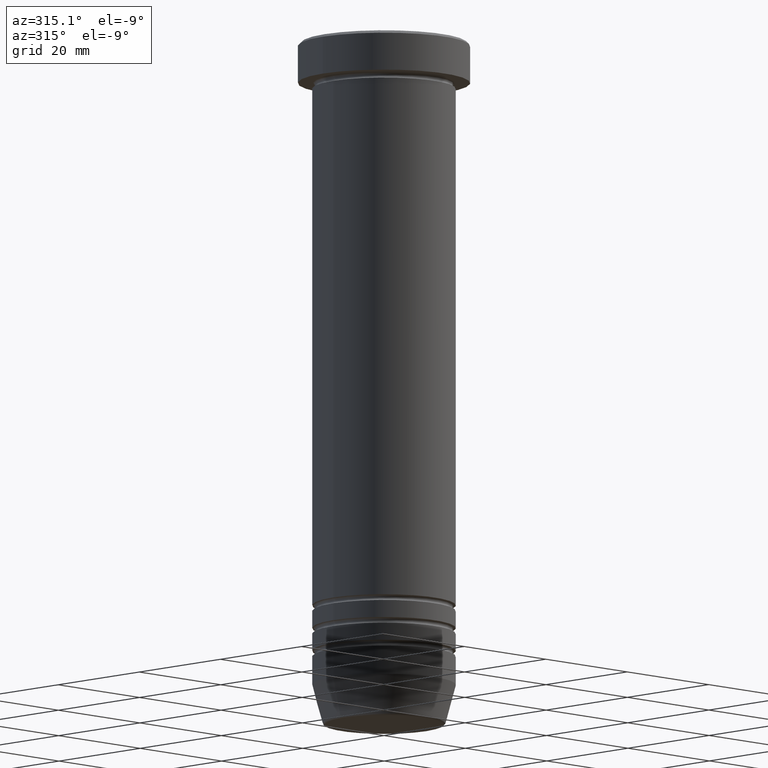
[diagram: clean part render]
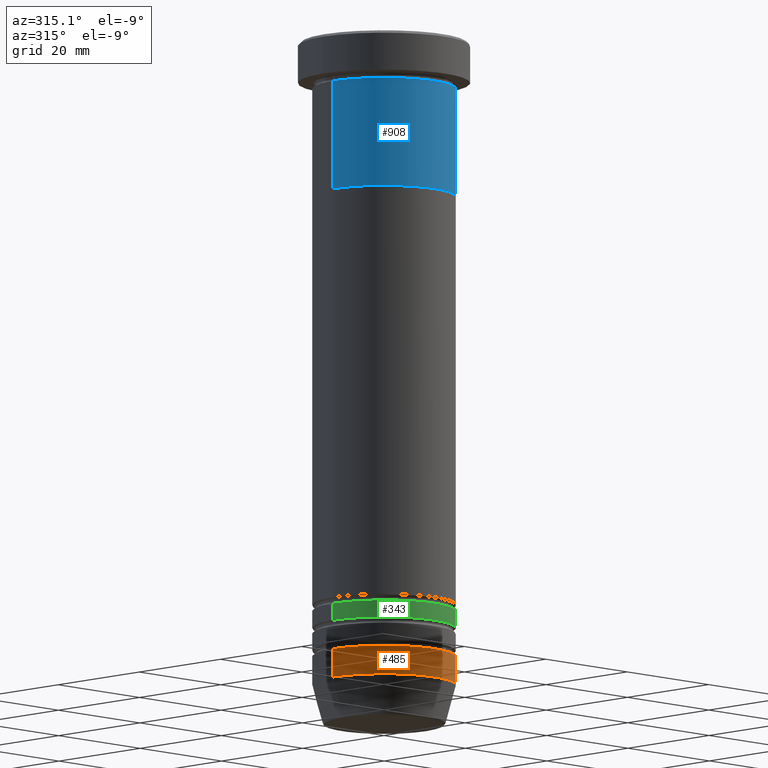
[diagram: same view with three faces highlighted in distinct colors, each labeled with its STEP entity id]
A machine part, auxiliary view with three faces highlighted in distinct colors.
Their STEP definitions:

[orange] entity #485 — the highlighted cylindrical surface (partial cylindrical patch) has radius 12.5 mm, axis along (-0, -0, 1).
#8 = FACE_OUTER_BOUND ( 'NONE', #878, .T. ) ;
#23 = DIRECTION ( 'NONE',  ( -0.000000000000000000, -0.000000000000000000, 1.000000000000000000 ) ) ;
#48 = EDGE_CURVE ( 'NONE', #991, #719, #682, .T. ) ;
#55 = ORIENTED_EDGE ( 'NONE', *, *, #797, .F. ) ;
#59 = ORIENTED_EDGE ( 'NONE', *, *, #48, .T. ) ;
#93 = CARTESIAN_POINT ( 'NONE',  ( -12.50000000000000000, 1.530808498934191521E-15, -107.9999999999999858 ) ) ;
#101 = CIRCLE ( 'NONE', #602, 12.50000000000000000 ) ;
#102 = AXIS2_PLACEMENT_3D ( 'NONE', #296, #452, #397 ) ;
#112 = ORIENTED_EDGE ( 'NONE', *, *, #1014, .T. ) ;
#138 = AXIS2_PLACEMENT_3D ( 'NONE', #598, #988, #421 ) ;
#140 = VECTOR ( 'NONE', #23, 1000.000000000000000 ) ;
#181 = DIRECTION ( 'NONE',  ( -0.000000000000000000, -0.000000000000000000, 1.000000000000000000 ) ) ;
#194 = DIRECTION ( 'NONE',  ( -0.000000000000000000, -0.000000000000000000, 1.000000000000000000 ) ) ;
#197 = CARTESIAN_POINT ( 'NONE',  ( -12.50000000000000000, 1.530808498934191521E-15, -112.9999999999999858 ) ) ;
#296 = CARTESIAN_POINT ( 'NONE',  ( 0.000000000000000000, 0.000000000000000000, -112.9999999999999858 ) ) ;
#397 = DIRECTION ( 'NONE',  ( 1.000000000000000000, 0.000000000000000000, 0.000000000000000000 ) ) ;
#421 = DIRECTION ( 'NONE',  ( 1.000000000000000000, 0.000000000000000000, 0.000000000000000000 ) ) ;
#438 = LINE ( 'NONE', #905, #140 ) ;
#452 = DIRECTION ( 'NONE',  ( -0.000000000000000000, -0.000000000000000000, 1.000000000000000000 ) ) ;
#485 = ADVANCED_FACE ( 'NONE', ( #8 ), #836, .T. ) ;
#534 = CARTESIAN_POINT ( 'NONE',  ( 12.50000000000000000, 0.000000000000000000, -112.9999999999999858 ) ) ;
#598 = CARTESIAN_POINT ( 'NONE',  ( 0.000000000000000000, 0.000000000000000000, 0.000000000000000000 ) ) ;
#602 = AXIS2_PLACEMENT_3D ( 'NONE', #742, #194, #840 ) ;
#635 = VERTEX_POINT ( 'NONE', #197 ) ;
#673 = CARTESIAN_POINT ( 'NONE',  ( 12.50000000000000000, 0.000000000000000000, 0.000000000000000000 ) ) ;
#682 = LINE ( 'NONE', #673, #1002 ) ;
#719 = VERTEX_POINT ( 'NONE', #864 ) ;
#742 = CARTESIAN_POINT ( 'NONE',  ( 0.000000000000000000, 0.000000000000000000, -107.9999999999999858 ) ) ;
#790 = VERTEX_POINT ( 'NONE', #93 ) ;
#797 = EDGE_CURVE ( 'NONE', #635, #790, #438, .T. ) ;
#799 = ORIENTED_EDGE ( 'NONE', *, *, #856, .F. ) ;
#836 = CYLINDRICAL_SURFACE ( 'NONE', #138, 12.50000000000000000 ) ;
#840 = DIRECTION ( 'NONE',  ( 1.000000000000000000, 0.000000000000000000, 0.000000000000000000 ) ) ;
#856 = EDGE_CURVE ( 'NONE', #790, #719, #101, .T. ) ;
#864 = CARTESIAN_POINT ( 'NONE',  ( 12.50000000000000000, 0.000000000000000000, -107.9999999999999858 ) ) ;
#878 = EDGE_LOOP ( 'NONE', ( #55, #112, #59, #799 ) ) ;
#905 = CARTESIAN_POINT ( 'NONE',  ( -12.50000000000000000, 1.530808498934191521E-15, 0.000000000000000000 ) ) ;
#988 = DIRECTION ( 'NONE',  ( -0.000000000000000000, -0.000000000000000000, 1.000000000000000000 ) ) ;
#991 = VERTEX_POINT ( 'NONE', #534 ) ;
#1002 = VECTOR ( 'NONE', #181, 1000.000000000000000 ) ;
#1014 = EDGE_CURVE ( 'NONE', #635, #991, #1024, .T. ) ;
#1024 = CIRCLE ( 'NONE', #102, 12.50000000000000000 ) ;

[blue] entity #908 — the highlighted cylindrical surface (partial cylindrical patch) has radius 12.5 mm, axis along (-0, -0, 1).
#12 = VECTOR ( 'NONE', #348, 1000.000000000000000 ) ;
#21 = LINE ( 'NONE', #676, #12 ) ;
#41 = CYLINDRICAL_SURFACE ( 'NONE', #820, 12.50000000000000000 ) ;
#51 = DIRECTION ( 'NONE',  ( -0.000000000000000000, -0.000000000000000000, 1.000000000000000000 ) ) ;
#57 = CARTESIAN_POINT ( 'NONE',  ( -12.50000000000000000, 1.530808498934191521E-15, 0.000000000000000000 ) ) ;
#82 = ORIENTED_EDGE ( 'NONE', *, *, #577, .T. ) ;
#120 = AXIS2_PLACEMENT_3D ( 'NONE', #419, #995, #604 ) ;
#212 = DIRECTION ( 'NONE',  ( -0.000000000000000000, -0.000000000000000000, 1.000000000000000000 ) ) ;
#216 = CARTESIAN_POINT ( 'NONE',  ( 0.000000000000000000, 0.000000000000000000, 0.000000000000000000 ) ) ;
#237 = EDGE_CURVE ( 'NONE', #846, #979, #369, .T. ) ;
#348 = DIRECTION ( 'NONE',  ( -0.000000000000000000, -0.000000000000000000, 1.000000000000000000 ) ) ;
#369 = LINE ( 'NONE', #57, #966 ) ;
#391 = CIRCLE ( 'NONE', #771, 12.50000000000000000 ) ;
#405 = CIRCLE ( 'NONE', #120, 12.50000000000000000 ) ;
#419 = CARTESIAN_POINT ( 'NONE',  ( 0.000000000000000000, 0.000000000000000000, -27.00000000000000000 ) ) ;
#426 = DIRECTION ( 'NONE',  ( 1.000000000000000000, 0.000000000000000000, 0.000000000000000000 ) ) ;
#470 = FACE_OUTER_BOUND ( 'NONE', #572, .T. ) ;
#505 = DIRECTION ( 'NONE',  ( -0.000000000000000000, -0.000000000000000000, 1.000000000000000000 ) ) ;
#540 = ORIENTED_EDGE ( 'NONE', *, *, #814, .F. ) ;
#543 = DIRECTION ( 'NONE',  ( 1.000000000000000000, 0.000000000000000000, 0.000000000000000000 ) ) ;
#553 = ORIENTED_EDGE ( 'NONE', *, *, #237, .F. ) ;
#572 = EDGE_LOOP ( 'NONE', ( #553, #828, #82, #540 ) ) ;
#577 = EDGE_CURVE ( 'NONE', #833, #627, #21, .T. ) ;
#604 = DIRECTION ( 'NONE',  ( 1.000000000000000000, 0.000000000000000000, 0.000000000000000000 ) ) ;
#627 = VERTEX_POINT ( 'NONE', #824 ) ;
#676 = CARTESIAN_POINT ( 'NONE',  ( 12.50000000000000000, 0.000000000000000000, 0.000000000000000000 ) ) ;
#678 = CARTESIAN_POINT ( 'NONE',  ( 0.000000000000000000, 0.000000000000000000, -8.000000000000000000 ) ) ;
#692 = CARTESIAN_POINT ( 'NONE',  ( -12.50000000000000000, 1.530808498934191521E-15, -8.000000000000000000 ) ) ;
#727 = EDGE_CURVE ( 'NONE', #846, #833, #405, .T. ) ;
#771 = AXIS2_PLACEMENT_3D ( 'NONE', #678, #505, #426 ) ;
#814 = EDGE_CURVE ( 'NONE', #979, #627, #391, .T. ) ;
#820 = AXIS2_PLACEMENT_3D ( 'NONE', #216, #212, #543 ) ;
#824 = CARTESIAN_POINT ( 'NONE',  ( 12.50000000000000000, 0.000000000000000000, -8.000000000000000000 ) ) ;
#828 = ORIENTED_EDGE ( 'NONE', *, *, #727, .T. ) ;
#833 = VERTEX_POINT ( 'NONE', #990 ) ;
#846 = VERTEX_POINT ( 'NONE', #926 ) ;
#908 = ADVANCED_FACE ( 'NONE', ( #470 ), #41, .T. ) ;
#926 = CARTESIAN_POINT ( 'NONE',  ( -12.50000000000000000, 1.530808498934191521E-15, -27.00000000000000000 ) ) ;
#966 = VECTOR ( 'NONE', #51, 1000.000000000000000 ) ;
#979 = VERTEX_POINT ( 'NONE', #692 ) ;
#990 = CARTESIAN_POINT ( 'NONE',  ( 12.50000000000000000, 0.000000000000000000, -27.00000000000000000 ) ) ;
#995 = DIRECTION ( 'NONE',  ( -0.000000000000000000, -0.000000000000000000, 1.000000000000000000 ) ) ;

[green] entity #343 — the highlighted cylindrical surface (partial cylindrical patch) has radius 12.5 mm, axis along (-0, -0, 1).
#5 = EDGE_CURVE ( 'NONE', #356, #159, #316, .T. ) ;
#11 = VECTOR ( 'NONE', #612, 1000.000000000000000 ) ;
#15 = EDGE_CURVE ( 'NONE', #453, #213, #730, .T. ) ;
#19 = ORIENTED_EDGE ( 'NONE', *, *, #311, .F. ) ;
#34 = CARTESIAN_POINT ( 'NONE',  ( -12.50000000000000000, 1.530808498934191521E-15, 0.000000000000000000 ) ) ;
#116 = AXIS2_PLACEMENT_3D ( 'NONE', #677, #593, #589 ) ;
#141 = VECTOR ( 'NONE', #977, 1000.000000000000000 ) ;
#146 = LINE ( 'NONE', #888, #141 ) ;
#159 = VERTEX_POINT ( 'NONE', #331 ) ;
#160 = DIRECTION ( 'NONE',  ( 1.000000000000000000, 0.000000000000000000, 0.000000000000000000 ) ) ;
#176 = CARTESIAN_POINT ( 'NONE',  ( 0.000000000000000000, 0.000000000000000000, -102.9999999999999858 ) ) ;
#213 = VERTEX_POINT ( 'NONE', #854 ) ;
#227 = ORIENTED_EDGE ( 'NONE', *, *, #15, .T. ) ;
#232 = AXIS2_PLACEMENT_3D ( 'NONE', #176, #344, #260 ) ;
#260 = DIRECTION ( 'NONE',  ( 1.000000000000000000, 0.000000000000000000, 0.000000000000000000 ) ) ;
#311 = EDGE_CURVE ( 'NONE', #453, #356, #776, .T. ) ;
#316 = CIRCLE ( 'NONE', #116, 12.50000000000000000 ) ;
#317 = FACE_OUTER_BOUND ( 'NONE', #1026, .T. ) ;
#331 = CARTESIAN_POINT ( 'NONE',  ( 12.50000000000000000, 0.000000000000000000, -99.99999999999998579 ) ) ;
#343 = ADVANCED_FACE ( 'NONE', ( #317 ), #815, .T. ) ;
#344 = DIRECTION ( 'NONE',  ( -0.000000000000000000, -0.000000000000000000, 1.000000000000000000 ) ) ;
#356 = VERTEX_POINT ( 'NONE', #811 ) ;
#411 = ORIENTED_EDGE ( 'NONE', *, *, #1050, .T. ) ;
#453 = VERTEX_POINT ( 'NONE', #487 ) ;
#487 = CARTESIAN_POINT ( 'NONE',  ( -12.49999999999999822, 1.530808498934191324E-15, -102.9999999999999858 ) ) ;
#589 = DIRECTION ( 'NONE',  ( 1.000000000000000000, 0.000000000000000000, 0.000000000000000000 ) ) ;
#593 = DIRECTION ( 'NONE',  ( -0.000000000000000000, -0.000000000000000000, 1.000000000000000000 ) ) ;
#612 = DIRECTION ( 'NONE',  ( -0.000000000000000000, -0.000000000000000000, 1.000000000000000000 ) ) ;
#677 = CARTESIAN_POINT ( 'NONE',  ( 0.000000000000000000, 0.000000000000000000, -99.99999999999998579 ) ) ;
#725 = CARTESIAN_POINT ( 'NONE',  ( 0.000000000000000000, 0.000000000000000000, 0.000000000000000000 ) ) ;
#730 = CIRCLE ( 'NONE', #232, 12.49999999999999822 ) ;
#776 = LINE ( 'NONE', #34, #11 ) ;
#811 = CARTESIAN_POINT ( 'NONE',  ( -12.50000000000000000, 1.530808498934191521E-15, -99.99999999999998579 ) ) ;
#815 = CYLINDRICAL_SURFACE ( 'NONE', #1039, 12.50000000000000000 ) ;
#854 = CARTESIAN_POINT ( 'NONE',  ( 12.49999999999999822, 0.000000000000000000, -102.9999999999999858 ) ) ;
#888 = CARTESIAN_POINT ( 'NONE',  ( 12.50000000000000000, 0.000000000000000000, 0.000000000000000000 ) ) ;
#977 = DIRECTION ( 'NONE',  ( -0.000000000000000000, -0.000000000000000000, 1.000000000000000000 ) ) ;
#994 = ORIENTED_EDGE ( 'NONE', *, *, #5, .F. ) ;
#1026 = EDGE_LOOP ( 'NONE', ( #19, #227, #411, #994 ) ) ;
#1039 = AXIS2_PLACEMENT_3D ( 'NONE', #725, #1054, #160 ) ;
#1050 = EDGE_CURVE ( 'NONE', #213, #159, #146, .T. ) ;
#1054 = DIRECTION ( 'NONE',  ( -0.000000000000000000, -0.000000000000000000, 1.000000000000000000 ) ) ;